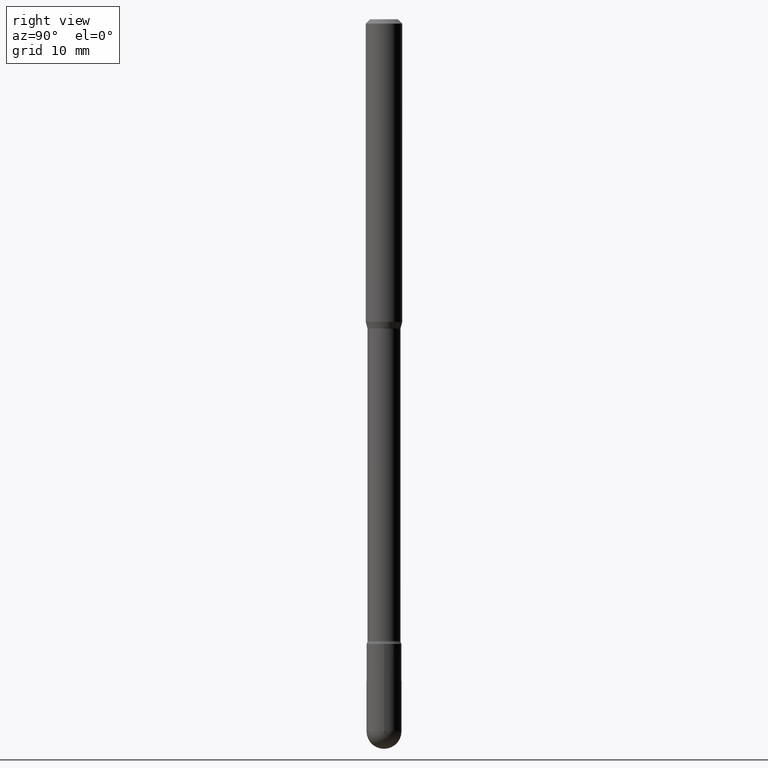
[diagram: clean part render]
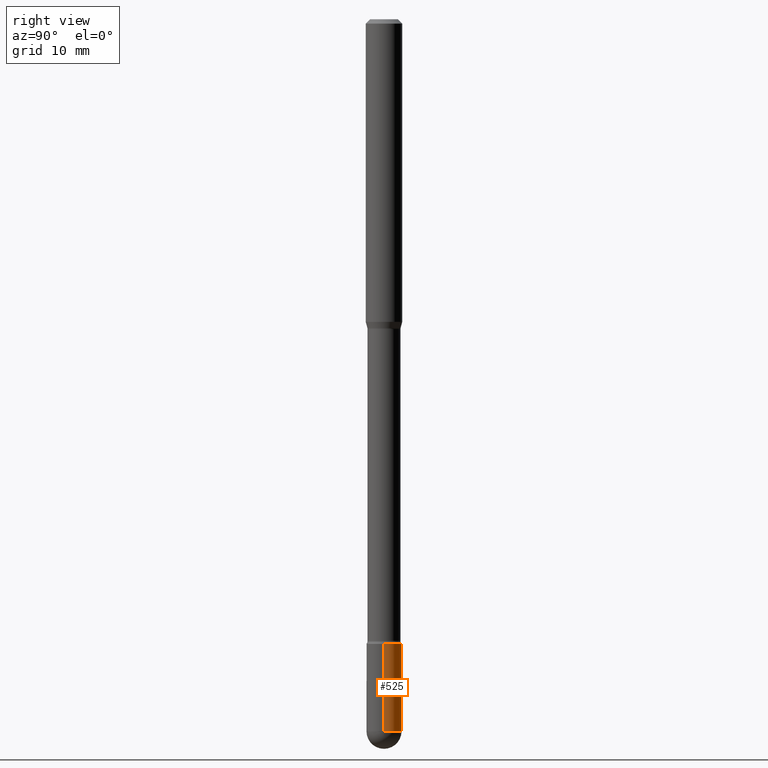
[diagram: same view with one face highlighted and labeled with its STEP entity id]
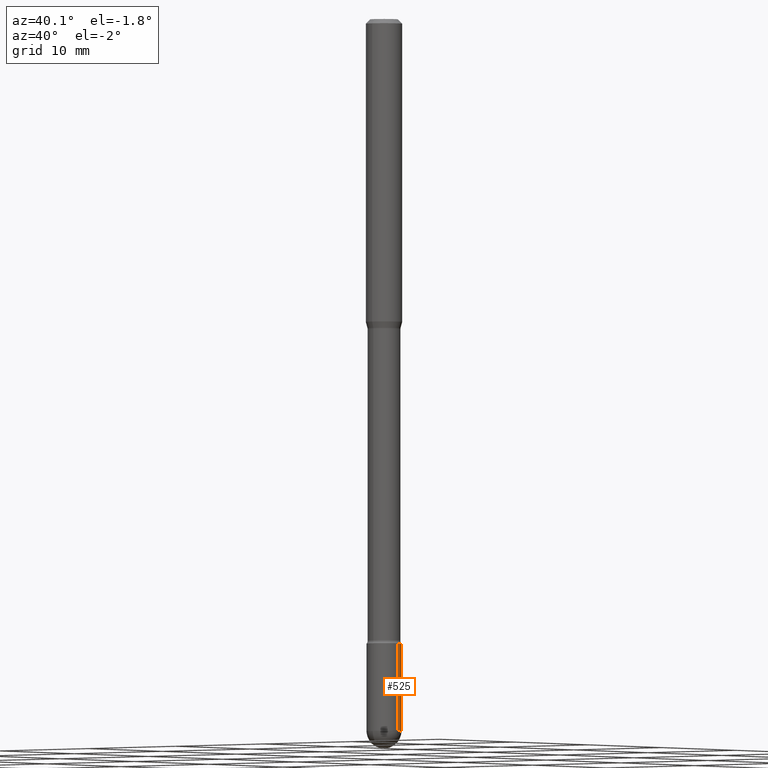
[diagram: same view with one face highlighted and labeled with its STEP entity id]
A machine part, right view. The second image highlights one B-rep face of the part: STEP entity #525.
A second angle (auxiliary view) of the same face is appended — the face is thin or edge-on in the first view.
In plain terms, the highlighted cylindrical surface (edge-blend (fillet) strip) has radius 1.524 mm, axis along (-0, 0, 1).
Its self-contained STEP definition (entity closure, byte-faithful):
#2 = CARTESIAN_POINT ( 'NONE',  ( -0.05999999999999999084, 4.263256414560600464E-16, -2.951361054152942712E-30 ) ) ;
#11 = AXIS2_PLACEMENT_3D ( 'NONE', #266, #137, #317 ) ;
#17 = CARTESIAN_POINT ( 'NONE',  ( 0.05999999999999999778, -7.890747825785508520E-15, -2.140000000000000124 ) ) ;
#19 = VECTOR ( 'NONE', #166, 39.37007874015748143 ) ;
#26 = EDGE_CURVE ( 'NONE', #429, #107, #521, .T. ) ;
#27 = VERTEX_POINT ( 'NONE', #17 ) ;
#40 = VECTOR ( 'NONE', #119, 39.37007874015748143 ) ;
#41 = CIRCLE ( 'NONE', #11, 0.05999999999999999778 ) ;
#65 = ORIENTED_EDGE ( 'NONE', *, *, #455, .F. ) ;
#68 = ORIENTED_EDGE ( 'NONE', *, *, #263, .T. ) ;
#76 = AXIS2_PLACEMENT_3D ( 'NONE', #342, #507, #513 ) ;
#87 = CIRCLE ( 'NONE', #76, 0.05999999999999999084 ) ;
#96 = AXIS2_PLACEMENT_3D ( 'NONE', #544, #148, #327 ) ;
#107 = VERTEX_POINT ( 'NONE', #378 ) ;
#119 = DIRECTION ( 'NONE',  ( -2.445468806185136877E-29, 3.491481338843145188E-15, 1.000000000000000000 ) ) ;
#120 = EDGE_CURVE ( 'NONE', #144, #27, #246, .T. ) ;
#122 = FACE_OUTER_BOUND ( 'NONE', #136, .T. ) ;
#136 = EDGE_LOOP ( 'NONE', ( #318, #68, #65, #350, #187 ) ) ;
#137 = DIRECTION ( 'NONE',  ( -2.445468806185136597E-29, 3.491481338843145583E-15, 1.000000000000000000 ) ) ;
#144 = VERTEX_POINT ( 'NONE', #506 ) ;
#148 = DIRECTION ( 'NONE',  ( -2.445468806185136597E-29, 3.491481338843145583E-15, 1.000000000000000000 ) ) ;
#166 = DIRECTION ( 'NONE',  ( -2.445468806185136877E-29, 3.491481338843145188E-15, 1.000000000000000000 ) ) ;
#172 = DIRECTION ( 'NONE',  ( 1.000000000000000000, -6.982962677686266711E-15, 4.876176775795935793E-29 ) ) ;
#187 = ORIENTED_EDGE ( 'NONE', *, *, #520, .T. ) ;
#244 = CARTESIAN_POINT ( 'NONE',  ( 0.05999999999999999084, -4.189777606611759435E-16, 2.925706065477561055E-30 ) ) ;
#246 = LINE ( 'NONE', #244, #40 ) ;
#261 = DIRECTION ( 'NONE',  ( -2.445468806185136597E-29, 3.491481338843145583E-15, 1.000000000000000000 ) ) ;
#262 = CARTESIAN_POINT ( 'NONE',  ( -0.06000000000000001166, -7.569166624494744555E-15, -2.140000000000000124 ) ) ;
#263 = EDGE_CURVE ( 'NONE', #107, #285, #509, .T. ) ;
#266 = CARTESIAN_POINT ( 'NONE',  ( 5.233303245236192586E-29, -7.471770065124331886E-15, -2.140000000000000124 ) ) ;
#285 = VERTEX_POINT ( 'NONE', #262 ) ;
#317 = DIRECTION ( 'NONE',  ( 1.000000000000000000, -6.982962677686268288E-15, 0.000000000000000000 ) ) ;
#318 = ORIENTED_EDGE ( 'NONE', *, *, #26, .T. ) ;
#327 = DIRECTION ( 'NONE',  ( 1.000000000000000000, -6.982962677686269077E-15, 0.000000000000000000 ) ) ;
#342 = CARTESIAN_POINT ( 'NONE',  ( 5.966943887091733341E-29, -8.519214466777275048E-15, -2.440000000000000391 ) ) ;
#350 = ORIENTED_EDGE ( 'NONE', *, *, #120, .F. ) ;
#378 = CARTESIAN_POINT ( 'NONE',  ( -0.05999999999999999084, -7.569166624494744555E-15, -2.440000000000000391 ) ) ;
#405 = AXIS2_PLACEMENT_3D ( 'NONE', #519, #261, #172 ) ;
#427 = CYLINDRICAL_SURFACE ( 'NONE', #405, 0.05999999999999999084 ) ;
#429 = VERTEX_POINT ( 'NONE', #480 ) ;
#455 = EDGE_CURVE ( 'NONE', #27, #285, #41, .T. ) ;
#480 = CARTESIAN_POINT ( 'NONE',  ( 4.189777606612354039E-16, 0.05999999999999145600, -2.440000000000000391 ) ) ;
#506 = CARTESIAN_POINT ( 'NONE',  ( 0.05999999999999999084, -8.414470026611980101E-15, -2.440000000000000391 ) ) ;
#507 = DIRECTION ( 'NONE',  ( -2.445468806185136597E-29, 3.491481338843145583E-15, 1.000000000000000000 ) ) ;
#509 = LINE ( 'NONE', #2, #19 ) ;
#513 = DIRECTION ( 'NONE',  ( 1.000000000000000000, -6.982962677686269077E-15, 0.000000000000000000 ) ) ;
#519 = CARTESIAN_POINT ( 'NONE',  ( 0.000000000000000000, 0.000000000000000000, 0.000000000000000000 ) ) ;
#520 = EDGE_CURVE ( 'NONE', #144, #429, #87, .T. ) ;
#521 = CIRCLE ( 'NONE', #96, 0.05999999999999999084 ) ;
#525 = ADVANCED_FACE ( 'NONE', ( #122 ), #427, .T. ) ;
#544 = CARTESIAN_POINT ( 'NONE',  ( 5.966943887091733341E-29, -8.519214466777275048E-15, -2.440000000000000391 ) ) ;